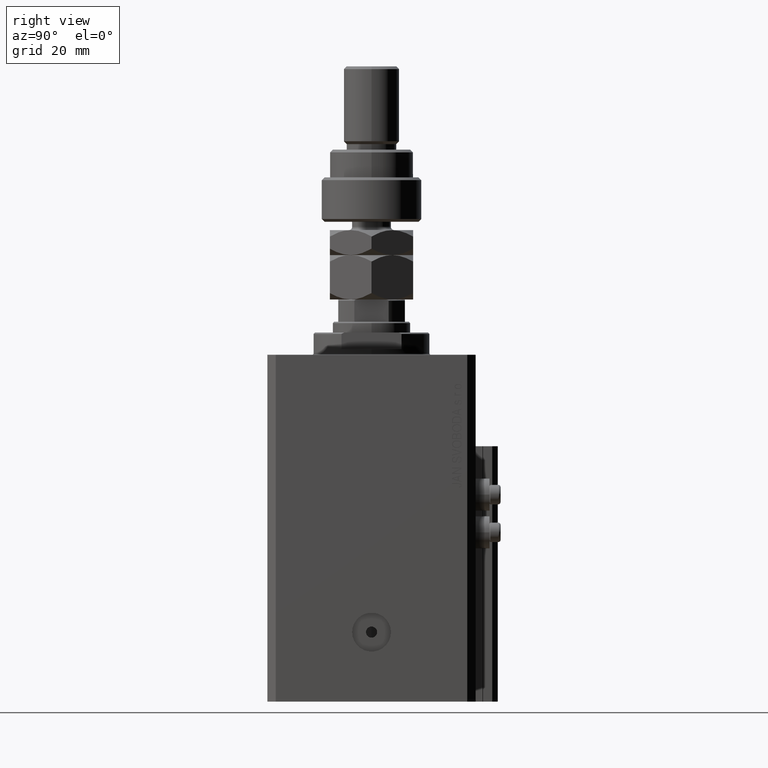
[diagram: clean part render]
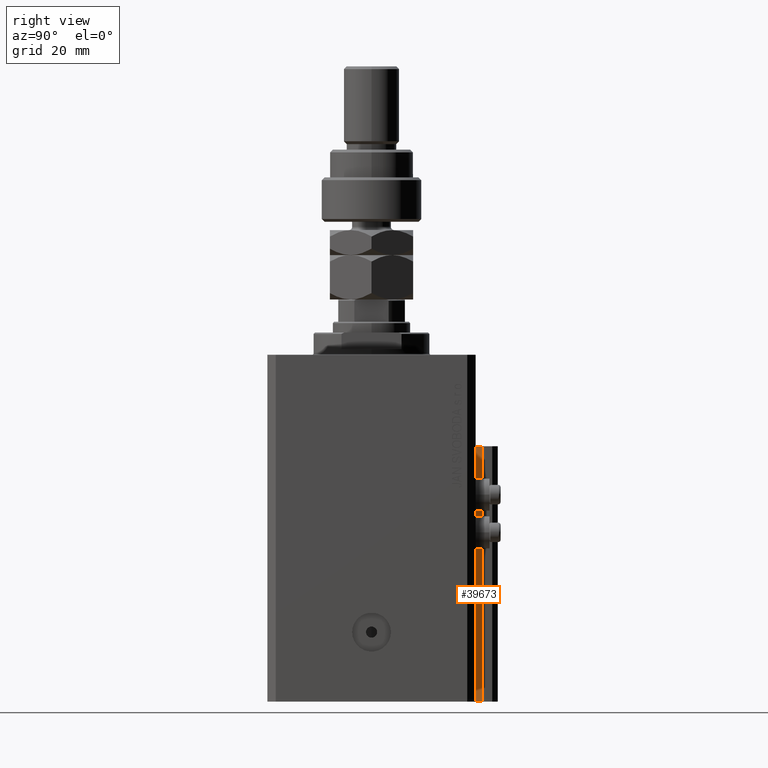
[diagram: same view with one face highlighted and labeled with its STEP entity id]
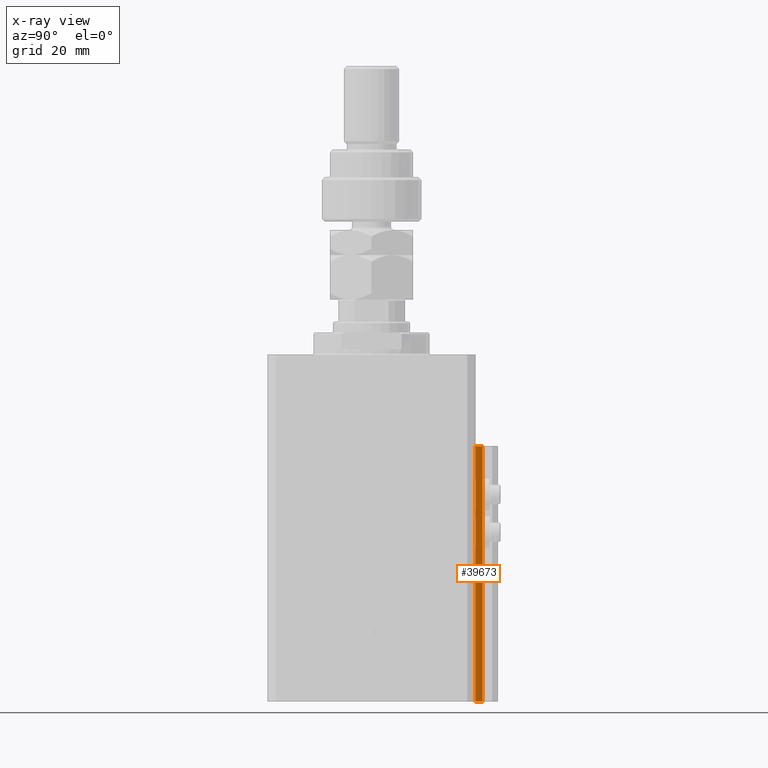
[diagram: x-ray of the same camera — body ghosted, the highlighted face saturated]
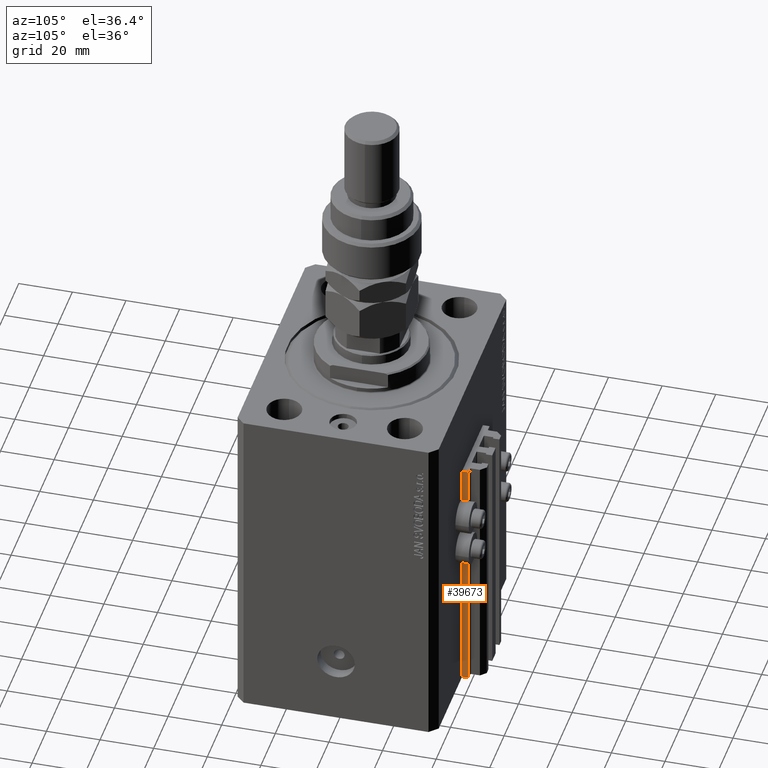
[diagram: same view with one face highlighted and labeled with its STEP entity id]
A machine part, right view. The second image highlights one B-rep face of the part: STEP entity #39673.
The next image is the same camera in x-ray: the body ghosted, the highlighted face saturated — about 0% of this face is hidden behind the body in this view.
A second angle (auxiliary view) of the same face is appended — the face is thin or edge-on in the first view.
In plain terms, the highlighted planar face has unit normal (1, 0, 0).
Its self-contained STEP definition (entity closure, byte-faithful):
#1784 = LINE ( 'NONE', #40265, #14638 ) ;
#1957 = DIRECTION ( 'NONE',  ( 0.000000000000000000, 0.000000000000000000, 1.000000000000000000 ) ) ;
#3351 = VERTEX_POINT ( 'NONE', #28258 ) ;
#6994 = CARTESIAN_POINT ( 'NONE',  ( 14.49999999999999645, 40.00000000000002132, -125.0000000000000000 ) ) ;
#7057 = CARTESIAN_POINT ( 'NONE',  ( 14.49999999999999645, 37.50000000000000711, -33.00000000000000000 ) ) ;
#7858 = CARTESIAN_POINT ( 'NONE',  ( 14.49999999999999645, 37.50000000000000711, -125.0000000000000000 ) ) ;
#8593 = DIRECTION ( 'NONE',  ( 1.000000000000000000, 0.000000000000000000, 0.000000000000000000 ) ) ;
#9177 = CARTESIAN_POINT ( 'NONE',  ( 14.49999999999999645, 37.50000000000000711, -125.0000000000000000 ) ) ;
#10817 = AXIS2_PLACEMENT_3D ( 'NONE', #34471, #8593, #24079 ) ;
#12616 = ORIENTED_EDGE ( 'NONE', *, *, #32385, .T. ) ;
#13028 = ORIENTED_EDGE ( 'NONE', *, *, #22181, .T. ) ;
#14638 = VECTOR ( 'NONE', #29837, 1000.000000000000000 ) ;
#14663 = LINE ( 'NONE', #7057, #26428 ) ;
#15231 = DIRECTION ( 'NONE',  ( 0.000000000000000000, 1.000000000000000000, 0.000000000000000000 ) ) ;
#16297 = EDGE_LOOP ( 'NONE', ( #34377, #37927, #13028, #12616 ) ) ;
#17147 = CARTESIAN_POINT ( 'NONE',  ( 14.49999999999999645, 40.00000000000002132, -125.0000000000000000 ) ) ;
#19903 = VECTOR ( 'NONE', #15231, 1000.000000000000000 ) ;
#22181 = EDGE_CURVE ( 'NONE', #34370, #37045, #42564, .T. ) ;
#24079 = DIRECTION ( 'NONE',  ( 0.000000000000000000, 0.000000000000000000, -1.000000000000000000 ) ) ;
#26287 = LINE ( 'NONE', #6994, #30789 ) ;
#26428 = VECTOR ( 'NONE', #45582, 1000.000000000000000 ) ;
#27403 = EDGE_CURVE ( 'NONE', #42132, #3351, #14663, .T. ) ;
#27889 = PLANE ( 'NONE',  #10817 ) ;
#28258 = CARTESIAN_POINT ( 'NONE',  ( 14.49999999999999645, 40.00000000000002132, -33.00000000000000000 ) ) ;
#29837 = DIRECTION ( 'NONE',  ( 0.000000000000000000, 0.000000000000000000, 1.000000000000000000 ) ) ;
#30789 = VECTOR ( 'NONE', #1957, 1000.000000000000000 ) ;
#32385 = EDGE_CURVE ( 'NONE', #37045, #3351, #26287, .T. ) ;
#32917 = CARTESIAN_POINT ( 'NONE',  ( 14.49999999999999645, 37.50000000000000711, -33.00000000000000000 ) ) ;
#33328 = EDGE_CURVE ( 'NONE', #34370, #42132, #1784, .T. ) ;
#34370 = VERTEX_POINT ( 'NONE', #9177 ) ;
#34377 = ORIENTED_EDGE ( 'NONE', *, *, #27403, .F. ) ;
#34471 = CARTESIAN_POINT ( 'NONE',  ( 14.49999999999999645, 37.50000000000000711, -125.0000000000000000 ) ) ;
#37045 = VERTEX_POINT ( 'NONE', #17147 ) ;
#37927 = ORIENTED_EDGE ( 'NONE', *, *, #33328, .F. ) ;
#39673 = ADVANCED_FACE ( 'NONE', ( #42312 ), #27889, .T. ) ;
#40265 = CARTESIAN_POINT ( 'NONE',  ( 14.49999999999999645, 37.50000000000000711, -125.0000000000000000 ) ) ;
#42132 = VERTEX_POINT ( 'NONE', #32917 ) ;
#42312 = FACE_OUTER_BOUND ( 'NONE', #16297, .T. ) ;
#42564 = LINE ( 'NONE', #7858, #19903 ) ;
#45582 = DIRECTION ( 'NONE',  ( 0.000000000000000000, 1.000000000000000000, 0.000000000000000000 ) ) ;